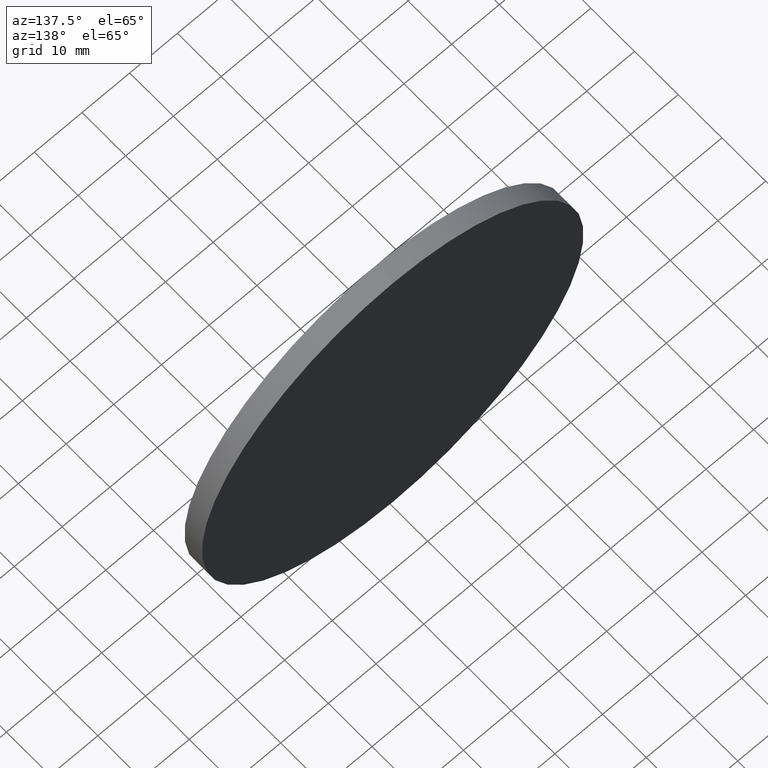
[diagram: clean part render]
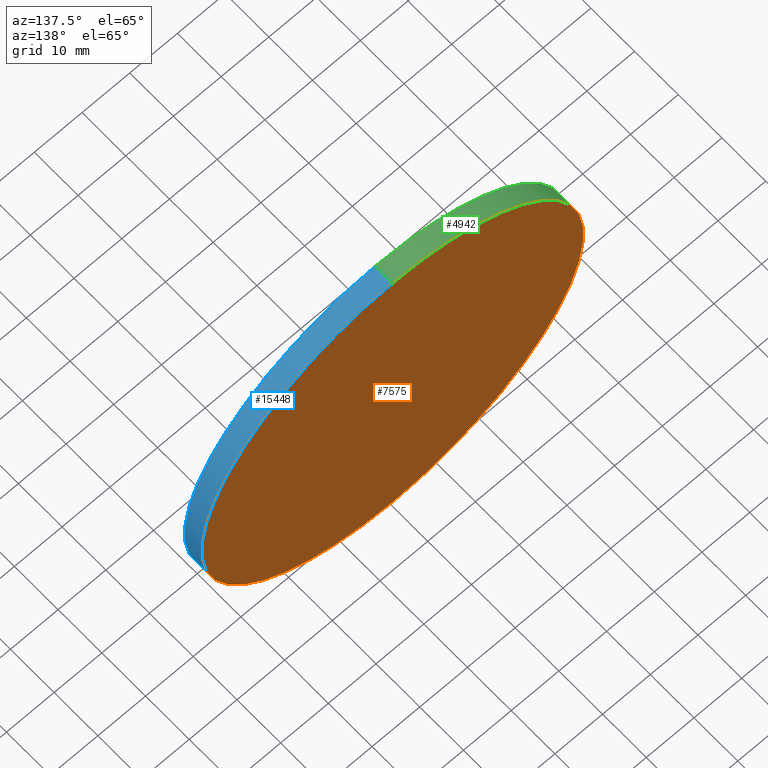
[diagram: same view with three faces highlighted in distinct colors, each labeled with its STEP entity id]
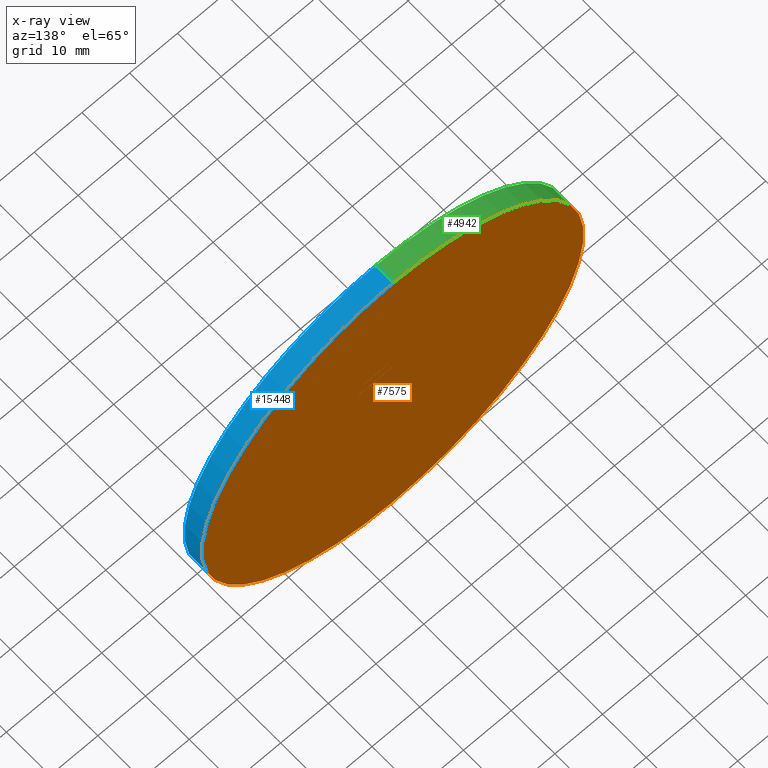
[diagram: x-ray of the same camera — body ghosted, the three highlighted faces saturated]
A machine part, auxiliary view with three faces highlighted in distinct colors.
The next image is the same camera in x-ray (body ghosted, the three faces saturated) — at least one of them is partly hidden behind the body in this view.
Their STEP definitions:

[orange] entity #7575 — the highlighted planar face has unit normal (0, 1, 0).
#681 = EDGE_CURVE ( 'NONE', #15766, #3296, #13659, .T. ) ;
#1087 = CIRCLE ( 'NONE', #10243, 40.00000000000000000 ) ;
#2496 = DIRECTION ( 'NONE',  ( 0.000000000000000000, -0.000000000000000000, 1.000000000000000000 ) ) ;
#3296 = VERTEX_POINT ( 'NONE', #14583 ) ;
#3579 = EDGE_LOOP ( 'NONE', ( #9020, #3938 ) ) ;
#3606 = PLANE ( 'NONE',  #10120 ) ;
#3810 = DIRECTION ( 'NONE',  ( 0.000000000000000000, 1.000000000000000000, 0.000000000000000000 ) ) ;
#3938 = ORIENTED_EDGE ( 'NONE', *, *, #681, .T. ) ;
#5892 = CARTESIAN_POINT ( 'NONE',  ( 0.000000000000000000, 2.000000000000000000, 0.000000000000000000 ) ) ;
#7129 = DIRECTION ( 'NONE',  ( 0.000000000000000000, 0.000000000000000000, 1.000000000000000000 ) ) ;
#7456 = CARTESIAN_POINT ( 'NONE',  ( 0.000000000000000000, 2.000000000000000000, 0.000000000000000000 ) ) ;
#7575 = ADVANCED_FACE ( 'NONE', ( #14436 ), #3606, .T. ) ;
#7727 = CARTESIAN_POINT ( 'NONE',  ( 4.898587196589413026E-15, 2.000000000000000000, 40.00000000000000000 ) ) ;
#7937 = EDGE_CURVE ( 'NONE', #3296, #15766, #1087, .T. ) ;
#8757 = DIRECTION ( 'NONE',  ( 0.000000000000000000, 1.000000000000000000, 0.000000000000000000 ) ) ;
#9020 = ORIENTED_EDGE ( 'NONE', *, *, #7937, .T. ) ;
#10120 = AXIS2_PLACEMENT_3D ( 'NONE', #7456, #3810, #2496 ) ;
#10243 = AXIS2_PLACEMENT_3D ( 'NONE', #5892, #14412, #7129 ) ;
#11101 = DIRECTION ( 'NONE',  ( 0.000000000000000000, 0.000000000000000000, 1.000000000000000000 ) ) ;
#13659 = CIRCLE ( 'NONE', #15795, 40.00000000000000000 ) ;
#14374 = CARTESIAN_POINT ( 'NONE',  ( 0.000000000000000000, 2.000000000000000000, 0.000000000000000000 ) ) ;
#14412 = DIRECTION ( 'NONE',  ( 0.000000000000000000, 1.000000000000000000, 0.000000000000000000 ) ) ;
#14436 = FACE_OUTER_BOUND ( 'NONE', #3579, .T. ) ;
#14583 = CARTESIAN_POINT ( 'NONE',  ( 0.000000000000000000, 2.000000000000000000, -40.00000000000000000 ) ) ;
#15766 = VERTEX_POINT ( 'NONE', #7727 ) ;
#15795 = AXIS2_PLACEMENT_3D ( 'NONE', #14374, #8757, #11101 ) ;

[blue] entity #15448 — the highlighted cylindrical surface (partial cylindrical patch) has radius 40 mm, axis along (-0, -1, -0).
#278 = CARTESIAN_POINT ( 'NONE',  ( 4.898587196589413026E-15, 2.000000000000000000, 40.00000000000000000 ) ) ;
#597 = ORIENTED_EDGE ( 'NONE', *, *, #681, .F. ) ;
#681 = EDGE_CURVE ( 'NONE', #15766, #3296, #13659, .T. ) ;
#1005 = DIRECTION ( 'NONE',  ( 0.000000000000000000, 0.000000000000000000, -1.000000000000000000 ) ) ;
#2038 = LINE ( 'NONE', #278, #5853 ) ;
#2343 = CARTESIAN_POINT ( 'NONE',  ( 4.898587196589413026E-15, -2.000000000000000000, 40.00000000000000000 ) ) ;
#3296 = VERTEX_POINT ( 'NONE', #14583 ) ;
#4689 = DIRECTION ( 'NONE',  ( -0.000000000000000000, -1.000000000000000000, -0.000000000000000000 ) ) ;
#5270 = DIRECTION ( 'NONE',  ( 0.000000000000000000, 0.000000000000000000, 1.000000000000000000 ) ) ;
#5853 = VECTOR ( 'NONE', #14744, 1000.000000000000000 ) ;
#5859 = CARTESIAN_POINT ( 'NONE',  ( 0.000000000000000000, -2.000000000000000000, -40.00000000000000000 ) ) ;
#6038 = VERTEX_POINT ( 'NONE', #5859 ) ;
#6163 = VERTEX_POINT ( 'NONE', #2343 ) ;
#6546 = ORIENTED_EDGE ( 'NONE', *, *, #14288, .T. ) ;
#6616 = CARTESIAN_POINT ( 'NONE',  ( 0.000000000000000000, -2.000000000000000000, 0.000000000000000000 ) ) ;
#7727 = CARTESIAN_POINT ( 'NONE',  ( 4.898587196589413026E-15, 2.000000000000000000, 40.00000000000000000 ) ) ;
#7928 = EDGE_CURVE ( 'NONE', #3296, #6038, #9115, .T. ) ;
#8249 = CARTESIAN_POINT ( 'NONE',  ( 0.000000000000000000, 2.000000000000000000, -40.00000000000000000 ) ) ;
#8556 = EDGE_CURVE ( 'NONE', #15766, #6163, #2038, .T. ) ;
#8757 = DIRECTION ( 'NONE',  ( 0.000000000000000000, 1.000000000000000000, 0.000000000000000000 ) ) ;
#8954 = AXIS2_PLACEMENT_3D ( 'NONE', #6616, #13804, #5270 ) ;
#9115 = LINE ( 'NONE', #8249, #13145 ) ;
#10622 = EDGE_LOOP ( 'NONE', ( #597, #11709, #6546, #14423 ) ) ;
#11101 = DIRECTION ( 'NONE',  ( 0.000000000000000000, 0.000000000000000000, 1.000000000000000000 ) ) ;
#11274 = FACE_OUTER_BOUND ( 'NONE', #10622, .T. ) ;
#11709 = ORIENTED_EDGE ( 'NONE', *, *, #8556, .T. ) ;
#12022 = CARTESIAN_POINT ( 'NONE',  ( 0.000000000000000000, 2.000000000000000000, 0.000000000000000000 ) ) ;
#13145 = VECTOR ( 'NONE', #15394, 1000.000000000000000 ) ;
#13401 = CYLINDRICAL_SURFACE ( 'NONE', #14850, 40.00000000000000000 ) ;
#13659 = CIRCLE ( 'NONE', #15795, 40.00000000000000000 ) ;
#13804 = DIRECTION ( 'NONE',  ( 0.000000000000000000, 1.000000000000000000, 0.000000000000000000 ) ) ;
#13968 = CIRCLE ( 'NONE', #8954, 40.00000000000000000 ) ;
#14288 = EDGE_CURVE ( 'NONE', #6163, #6038, #13968, .T. ) ;
#14374 = CARTESIAN_POINT ( 'NONE',  ( 0.000000000000000000, 2.000000000000000000, 0.000000000000000000 ) ) ;
#14423 = ORIENTED_EDGE ( 'NONE', *, *, #7928, .F. ) ;
#14583 = CARTESIAN_POINT ( 'NONE',  ( 0.000000000000000000, 2.000000000000000000, -40.00000000000000000 ) ) ;
#14744 = DIRECTION ( 'NONE',  ( -0.000000000000000000, -1.000000000000000000, -0.000000000000000000 ) ) ;
#14850 = AXIS2_PLACEMENT_3D ( 'NONE', #12022, #4689, #1005 ) ;
#15394 = DIRECTION ( 'NONE',  ( -0.000000000000000000, -1.000000000000000000, -0.000000000000000000 ) ) ;
#15448 = ADVANCED_FACE ( 'NONE', ( #11274 ), #13401, .T. ) ;
#15766 = VERTEX_POINT ( 'NONE', #7727 ) ;
#15795 = AXIS2_PLACEMENT_3D ( 'NONE', #14374, #8757, #11101 ) ;

[green] entity #4942 — the highlighted cylindrical surface (partial cylindrical patch) has radius 40 mm, axis along (-0, -1, -0).
#278 = CARTESIAN_POINT ( 'NONE',  ( 4.898587196589413026E-15, 2.000000000000000000, 40.00000000000000000 ) ) ;
#598 = AXIS2_PLACEMENT_3D ( 'NONE', #8336, #3514, #5041 ) ;
#1087 = CIRCLE ( 'NONE', #10243, 40.00000000000000000 ) ;
#2038 = LINE ( 'NONE', #278, #5853 ) ;
#2295 = CYLINDRICAL_SURFACE ( 'NONE', #598, 40.00000000000000000 ) ;
#2343 = CARTESIAN_POINT ( 'NONE',  ( 4.898587196589413026E-15, -2.000000000000000000, 40.00000000000000000 ) ) ;
#3296 = VERTEX_POINT ( 'NONE', #14583 ) ;
#3514 = DIRECTION ( 'NONE',  ( -0.000000000000000000, -1.000000000000000000, -0.000000000000000000 ) ) ;
#4942 = ADVANCED_FACE ( 'NONE', ( #14845 ), #2295, .T. ) ;
#5041 = DIRECTION ( 'NONE',  ( 0.000000000000000000, 0.000000000000000000, -1.000000000000000000 ) ) ;
#5210 = ORIENTED_EDGE ( 'NONE', *, *, #8556, .F. ) ;
#5853 = VECTOR ( 'NONE', #14744, 1000.000000000000000 ) ;
#5859 = CARTESIAN_POINT ( 'NONE',  ( 0.000000000000000000, -2.000000000000000000, -40.00000000000000000 ) ) ;
#5892 = CARTESIAN_POINT ( 'NONE',  ( 0.000000000000000000, 2.000000000000000000, 0.000000000000000000 ) ) ;
#6038 = VERTEX_POINT ( 'NONE', #5859 ) ;
#6163 = VERTEX_POINT ( 'NONE', #2343 ) ;
#7129 = DIRECTION ( 'NONE',  ( 0.000000000000000000, 0.000000000000000000, 1.000000000000000000 ) ) ;
#7315 = CARTESIAN_POINT ( 'NONE',  ( 0.000000000000000000, -2.000000000000000000, 0.000000000000000000 ) ) ;
#7473 = DIRECTION ( 'NONE',  ( 0.000000000000000000, 1.000000000000000000, 0.000000000000000000 ) ) ;
#7634 = ORIENTED_EDGE ( 'NONE', *, *, #12748, .T. ) ;
#7727 = CARTESIAN_POINT ( 'NONE',  ( 4.898587196589413026E-15, 2.000000000000000000, 40.00000000000000000 ) ) ;
#7928 = EDGE_CURVE ( 'NONE', #3296, #6038, #9115, .T. ) ;
#7937 = EDGE_CURVE ( 'NONE', #3296, #15766, #1087, .T. ) ;
#8249 = CARTESIAN_POINT ( 'NONE',  ( 0.000000000000000000, 2.000000000000000000, -40.00000000000000000 ) ) ;
#8336 = CARTESIAN_POINT ( 'NONE',  ( 0.000000000000000000, 2.000000000000000000, 0.000000000000000000 ) ) ;
#8556 = EDGE_CURVE ( 'NONE', #15766, #6163, #2038, .T. ) ;
#9115 = LINE ( 'NONE', #8249, #13145 ) ;
#10243 = AXIS2_PLACEMENT_3D ( 'NONE', #5892, #14412, #7129 ) ;
#11798 = ORIENTED_EDGE ( 'NONE', *, *, #7928, .T. ) ;
#12385 = DIRECTION ( 'NONE',  ( 0.000000000000000000, 0.000000000000000000, 1.000000000000000000 ) ) ;
#12748 = EDGE_CURVE ( 'NONE', #6038, #6163, #15677, .T. ) ;
#13145 = VECTOR ( 'NONE', #15394, 1000.000000000000000 ) ;
#14412 = DIRECTION ( 'NONE',  ( 0.000000000000000000, 1.000000000000000000, 0.000000000000000000 ) ) ;
#14425 = ORIENTED_EDGE ( 'NONE', *, *, #7937, .F. ) ;
#14489 = EDGE_LOOP ( 'NONE', ( #5210, #14425, #11798, #7634 ) ) ;
#14583 = CARTESIAN_POINT ( 'NONE',  ( 0.000000000000000000, 2.000000000000000000, -40.00000000000000000 ) ) ;
#14740 = AXIS2_PLACEMENT_3D ( 'NONE', #7315, #7473, #12385 ) ;
#14744 = DIRECTION ( 'NONE',  ( -0.000000000000000000, -1.000000000000000000, -0.000000000000000000 ) ) ;
#14845 = FACE_OUTER_BOUND ( 'NONE', #14489, .T. ) ;
#15394 = DIRECTION ( 'NONE',  ( -0.000000000000000000, -1.000000000000000000, -0.000000000000000000 ) ) ;
#15677 = CIRCLE ( 'NONE', #14740, 40.00000000000000000 ) ;
#15766 = VERTEX_POINT ( 'NONE', #7727 ) ;